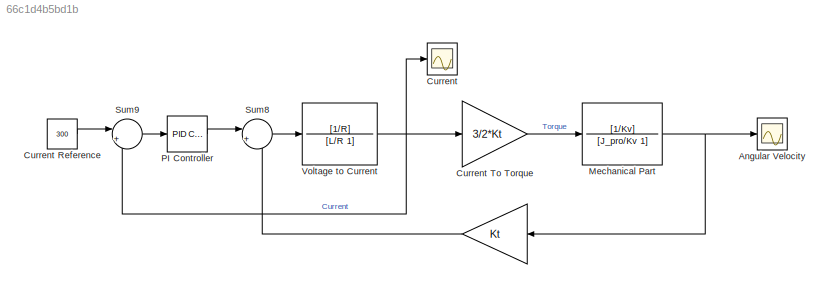
MODEL slx_66c1d4b5bd1b
KIND model
CONFIG AbsTol = auto
CONFIG FixedStep = auto
CONFIG MaxStep = auto
CONFIG MinStep = auto
CONFIG RelTol = 1e-3
CONFIG SampleTimeConstraint = Unconstrained
CONFIG Solver = VariableStepAuto
CONFIG SolverMode = Auto
CONFIG SolverName = VariableStepAuto
CONFIG StartTime = 0.0
CONFIG StopTime = 10.0
BLOCK [Gain]                 
  Gain = Kt
  OutDataTypeStr = Inherit: Inherit via internal rule
  ParamDataTypeStr = Inherit: Inherit via internal rule
  SaturateOnIntegerOverflow = off
BLOCK [Scope] Angular Velocity
  Ports = [1]
  ScopeSpecificationString = C++SS(StrPVP('SaveName','ScopeData'),StrPVP('SaveName','ScopeData1'))
BLOCK [Scope] Current
  Ports = [1]
  ScopeSpecificationString = C++SS(StrPVP('SaveName','ScopeData'))
BLOCK [Constant] Current Reference
  Value = 300
BLOCK [Gain] Current To Torque 
  Gain = 3/2*Kt
  OutDataTypeStr = Inherit: Inherit via internal rule
  ParamDataTypeStr = Inherit: Inherit via internal rule
  SaturateOnIntegerOverflow = off
BLOCK [TransferFcn] Mechanical Part 
  Denominator = [J_pro/Kv 1]
  Numerator = [1/Kv]
BLOCK [Reference] PI Controller   REF=simulink/Continuous/PID Controller
  Ports = [1, 1]
  SourceBlock = simulink/Continuous/PID Controller
  SourceType = PID 1dof
BLOCK [Sum] Sum8
  IconShape = round
  InputSameDT = off
  Inputs = |+-
  OutDataTypeStr = Inherit: Inherit via internal rule
  Ports = [2, 1]
  SaturateOnIntegerOverflow = off
BLOCK [Sum] Sum9
  IconShape = round
  InputSameDT = off
  Inputs = |+-
  OutDataTypeStr = Inherit: Inherit via internal rule
  Ports = [2, 1]
  SaturateOnIntegerOverflow = off
BLOCK [TransferFcn] Voltage to Current 
  Denominator = [L/R 1]
  Numerator = [1/R]
LINE                 :1 -> Sum8:2
LINE Current Reference:1 -> Sum9:1
LINE Current To Torque :1 -> Mechanical Part :1
NET Mechanical Part :1 ->                 :1, Angular Velocity:1
LINE PI Controller :1 -> Sum8:1
LINE Sum8:1 -> Voltage to Current :1
LINE Sum9:1 -> PI Controller :1
NET Voltage to Current :1 -> Current To Torque :1, Current:1, Sum9:2
note: NET lines group one-source signal fan-out (src -> all destinations, sorted); 1:1 wires keep LINE
